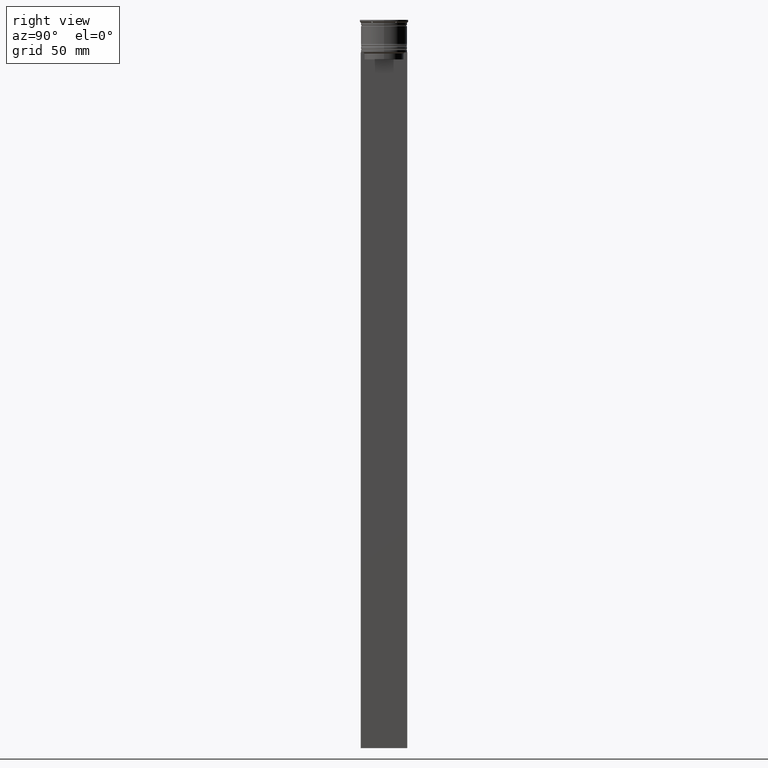
[diagram: clean part render]
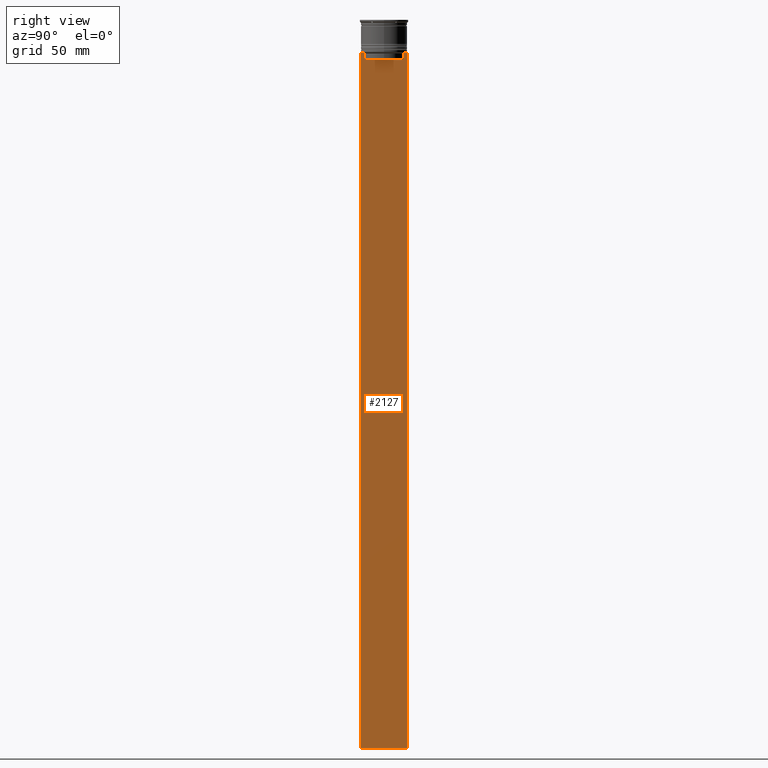
[diagram: same view with one face highlighted and labeled with its STEP entity id]
A machine part, right view. The second image highlights one B-rep face of the part: STEP entity #2127.
In plain terms, the highlighted planar face has unit normal (-1, 0, 0).
Its self-contained STEP definition (entity closure, byte-faithful):
#3 = ORIENTED_EDGE ( 'NONE', *, *, #432, .T. ) ;
#13 = CARTESIAN_POINT ( 'NONE',  ( 0.5000000000000000000, -8.385105843100616241, -17.00000000000000000 ) ) ;
#28 = EDGE_CURVE ( 'NONE', #1086, #667, #446, .T. ) ;
#55 = CARTESIAN_POINT ( 'NONE',  ( 0.5000000000000000000, -10.00000000000000178, -14.00000000000000178 ) ) ;
#70 = ORIENTED_EDGE ( 'NONE', *, *, #444, .F. ) ;
#71 = EDGE_CURVE ( 'NONE', #2180, #78, #1665, .T. ) ;
#78 = VERTEX_POINT ( 'NONE', #1227 ) ;
#104 = DIRECTION ( 'NONE',  ( 0.000000000000000000, 0.000000000000000000, 1.000000000000000000 ) ) ;
#134 = VECTOR ( 'NONE', #1693, 1000.000000000000000 ) ;
#154 = LINE ( 'NONE', #1182, #809 ) ;
#169 = CARTESIAN_POINT ( 'NONE',  ( 0.5000000000000000000, -8.885943956609230199, -14.00000000000000178 ) ) ;
#171 = VECTOR ( 'NONE', #181, 1000.000000000000000 ) ;
#176 = CARTESIAN_POINT ( 'NONE',  ( 0.5000000000000000000, -10.00000000000000178, 6.024984394500783047 ) ) ;
#181 = DIRECTION ( 'NONE',  ( 0.000000000000000000, -1.000000000000000000, 0.000000000000000000 ) ) ;
#252 = DIRECTION ( 'NONE',  ( 0.000000000000000000, -1.000000000000000000, 0.000000000000000000 ) ) ;
#303 = VECTOR ( 'NONE', #2087, 1000.000000000000000 ) ;
#305 = DIRECTION ( 'NONE',  ( -1.000000000000000000, 0.000000000000000000, 0.000000000000000000 ) ) ;
#366 = CARTESIAN_POINT ( 'NONE',  ( 0.5000000000000000000, 8.885943956609230199, -14.00000000000000178 ) ) ;
#369 = B_SPLINE_CURVE_WITH_KNOTS ( 'NONE', 3,
 ( #2106, #914, #1102, #1521 ),
 .UNSPECIFIED., .F., .F.,
 ( 4, 4 ),
 ( 0.03898465126933130243, 0.03969388910599658260 ),
 .UNSPECIFIED. ) ;
#425 = VECTOR ( 'NONE', #1641, 1000.000000000000000 ) ;
#432 = EDGE_CURVE ( 'NONE', #1251, #571, #1208, .T. ) ;
#436 = CARTESIAN_POINT ( 'NONE',  ( 0.5000000000000000000, 9.999999999999998224, -14.00000000000000178 ) ) ;
#444 = EDGE_CURVE ( 'NONE', #1781, #2267, #1079, .T. ) ;
#446 = LINE ( 'NONE', #1626, #2374 ) ;
#482 = EDGE_CURVE ( 'NONE', #1781, #1720, #154, .T. ) ;
#487 = EDGE_CURVE ( 'NONE', #1844, #2180, #2433, .T. ) ;
#571 = VERTEX_POINT ( 'NONE', #583 ) ;
#583 = CARTESIAN_POINT ( 'NONE',  ( 0.5000000000000000000, 8.385105843100616241, -14.50000000000000000 ) ) ;
#603 = CARTESIAN_POINT ( 'NONE',  ( 0.5000000000000000000, 9.999999999999998224, -314.0000000000000000 ) ) ;
#604 = CARTESIAN_POINT ( 'NONE',  ( 0.5000000000000000000, -10.00000000000000178, -314.0000000000000000 ) ) ;
#608 = ORIENTED_EDGE ( 'NONE', *, *, #1005, .T. ) ;
#667 = VERTEX_POINT ( 'NONE', #1655 ) ;
#690 = DIRECTION ( 'NONE',  ( 0.000000000000000000, -1.000000000000000000, 0.000000000000000000 ) ) ;
#769 = EDGE_CURVE ( 'NONE', #2372, #1876, #813, .T. ) ;
#783 = AXIS2_PLACEMENT_3D ( 'NONE', #2154, #305, #104 ) ;
#809 = VECTOR ( 'NONE', #967, 1000.000000000000000 ) ;
#813 = LINE ( 'NONE', #176, #425 ) ;
#860 = LINE ( 'NONE', #2331, #998 ) ;
#914 = CARTESIAN_POINT ( 'NONE',  ( 0.5000000000000000000, -8.552060194457773434, -14.33334167772667023 ) ) ;
#919 = CARTESIAN_POINT ( 'NONE',  ( 0.5000000000000000000, 9.999999999999998224, 6.024984394500783047 ) ) ;
#967 = DIRECTION ( 'NONE',  ( 0.000000000000000000, -1.000000000000000000, 0.000000000000000000 ) ) ;
#998 = VECTOR ( 'NONE', #690, 1000.000000000000000 ) ;
#1005 = EDGE_CURVE ( 'NONE', #571, #1844, #1726, .T. ) ;
#1079 = LINE ( 'NONE', #919, #134 ) ;
#1086 = VERTEX_POINT ( 'NONE', #169 ) ;
#1096 = ORIENTED_EDGE ( 'NONE', *, *, #71, .T. ) ;
#1102 = CARTESIAN_POINT ( 'NONE',  ( 0.5000000000000000000, -8.719005764482790966, -14.16667454151159689 ) ) ;
#1104 = VECTOR ( 'NONE', #1137, 1000.000000000000000 ) ;
#1137 = DIRECTION ( 'NONE',  ( 0.000000000000000000, 0.000000000000000000, -1.000000000000000000 ) ) ;
#1178 = ORIENTED_EDGE ( 'NONE', *, *, #28, .T. ) ;
#1182 = CARTESIAN_POINT ( 'NONE',  ( 0.5000000000000000000, -10.00000000000000178, -14.00000000000000178 ) ) ;
#1186 = EDGE_LOOP ( 'NONE', ( #2538, #3, #608, #1803, #1096, #1559, #1178, #2600, #2216, #2089, #70, #1514 ) ) ;
#1208 = B_SPLINE_CURVE_WITH_KNOTS ( 'NONE', 3,
 ( #1377, #1293, #1898, #1277 ),
 .UNSPECIFIED., .F., .F.,
 ( 4, 4 ),
 ( 0.01511546479386908018, 0.01582316445439079997 ),
 .UNSPECIFIED. ) ;
#1227 = CARTESIAN_POINT ( 'NONE',  ( 0.5000000000000000000, -8.385105843100616241, -14.50000000000000000 ) ) ;
#1251 = VERTEX_POINT ( 'NONE', #366 ) ;
#1277 = CARTESIAN_POINT ( 'NONE',  ( 0.5000000000000000000, 8.385105843100616241, -14.50000000000000000 ) ) ;
#1293 = CARTESIAN_POINT ( 'NONE',  ( 0.5000000000000000000, 8.719005771582347464, -14.16667453442325453 ) ) ;
#1318 = PLANE ( 'NONE',  #783 ) ;
#1322 = EDGE_CURVE ( 'NONE', #1876, #2267, #2286, .T. ) ;
#1377 = CARTESIAN_POINT ( 'NONE',  ( 0.5000000000000000000, 8.885943956609230199, -14.00000000000000178 ) ) ;
#1462 = DIRECTION ( 'NONE',  ( 0.000000000000000000, 1.000000000000000000, 0.000000000000000000 ) ) ;
#1481 = EDGE_CURVE ( 'NONE', #78, #1086, #369, .T. ) ;
#1514 = ORIENTED_EDGE ( 'NONE', *, *, #482, .T. ) ;
#1517 = CARTESIAN_POINT ( 'NONE',  ( 0.5000000000000000000, -10.00000000000000178, -314.0000000000000000 ) ) ;
#1521 = CARTESIAN_POINT ( 'NONE',  ( 0.5000000000000000000, -8.885943956609230199, -14.00000000000000178 ) ) ;
#1559 = ORIENTED_EDGE ( 'NONE', *, *, #1481, .T. ) ;
#1597 = DIRECTION ( 'NONE',  ( 0.000000000000000000, -1.000000000000000000, 0.000000000000000000 ) ) ;
#1626 = CARTESIAN_POINT ( 'NONE',  ( 0.5000000000000000000, -10.00000000000000178, -14.00000000000000178 ) ) ;
#1641 = DIRECTION ( 'NONE',  ( 0.000000000000000000, 0.000000000000000000, -1.000000000000000000 ) ) ;
#1649 = VECTOR ( 'NONE', #1597, 1000.000000000000000 ) ;
#1655 = CARTESIAN_POINT ( 'NONE',  ( 0.5000000000000000000, -9.887365675446622149, -14.00000000000000178 ) ) ;
#1665 = LINE ( 'NONE', #2099, #303 ) ;
#1693 = DIRECTION ( 'NONE',  ( 0.000000000000000000, 0.000000000000000000, -1.000000000000000000 ) ) ;
#1720 = VERTEX_POINT ( 'NONE', #2182 ) ;
#1726 = LINE ( 'NONE', #2177, #1104 ) ;
#1781 = VERTEX_POINT ( 'NONE', #436 ) ;
#1800 = CARTESIAN_POINT ( 'NONE',  ( 0.5000000000000000000, 8.400000000000003908, -17.00000000000000000 ) ) ;
#1803 = ORIENTED_EDGE ( 'NONE', *, *, #487, .T. ) ;
#1844 = VERTEX_POINT ( 'NONE', #1850 ) ;
#1850 = CARTESIAN_POINT ( 'NONE',  ( 0.5000000000000000000, 8.385105843100616241, -17.00000000000000000 ) ) ;
#1876 = VERTEX_POINT ( 'NONE', #1517 ) ;
#1890 = VECTOR ( 'NONE', #1462, 1000.000000000000000 ) ;
#1898 = CARTESIAN_POINT ( 'NONE',  ( 0.5000000000000000000, 8.552060201981378285, -14.33334167021640582 ) ) ;
#2019 = CARTESIAN_POINT ( 'NONE',  ( 0.5000000000000000000, -10.00000000000000178, -14.00000000000000178 ) ) ;
#2087 = DIRECTION ( 'NONE',  ( -0.000000000000000000, -0.000000000000000000, 1.000000000000000000 ) ) ;
#2089 = ORIENTED_EDGE ( 'NONE', *, *, #1322, .T. ) ;
#2099 = CARTESIAN_POINT ( 'NONE',  ( 0.5000000000000000000, -8.385105843100616241, 0.000000000000000000 ) ) ;
#2106 = CARTESIAN_POINT ( 'NONE',  ( 0.5000000000000000000, -8.385105843100616241, -14.50000000000000000 ) ) ;
#2127 = ADVANCED_FACE ( 'NONE', ( #2384 ), #1318, .F. ) ;
#2154 = CARTESIAN_POINT ( 'NONE',  ( 0.5000000000000000000, -10.00000000000000178, 6.024984394500783047 ) ) ;
#2177 = CARTESIAN_POINT ( 'NONE',  ( 0.5000000000000000000, 8.385105843100616241, 0.000000000000000000 ) ) ;
#2180 = VERTEX_POINT ( 'NONE', #13 ) ;
#2182 = CARTESIAN_POINT ( 'NONE',  ( 0.5000000000000000000, 9.887365675446622149, -14.00000000000000178 ) ) ;
#2216 = ORIENTED_EDGE ( 'NONE', *, *, #769, .T. ) ;
#2231 = LINE ( 'NONE', #2019, #1649 ) ;
#2267 = VERTEX_POINT ( 'NONE', #603 ) ;
#2286 = LINE ( 'NONE', #604, #1890 ) ;
#2331 = CARTESIAN_POINT ( 'NONE',  ( 0.5000000000000000000, -10.00000000000000178, -14.00000000000000178 ) ) ;
#2372 = VERTEX_POINT ( 'NONE', #55 ) ;
#2374 = VECTOR ( 'NONE', #252, 1000.000000000000000 ) ;
#2384 = FACE_OUTER_BOUND ( 'NONE', #1186, .T. ) ;
#2433 = LINE ( 'NONE', #1800, #171 ) ;
#2496 = EDGE_CURVE ( 'NONE', #1720, #1251, #2231, .T. ) ;
#2538 = ORIENTED_EDGE ( 'NONE', *, *, #2496, .T. ) ;
#2600 = ORIENTED_EDGE ( 'NONE', *, *, #2646, .T. ) ;
#2646 = EDGE_CURVE ( 'NONE', #667, #2372, #860, .T. ) ;